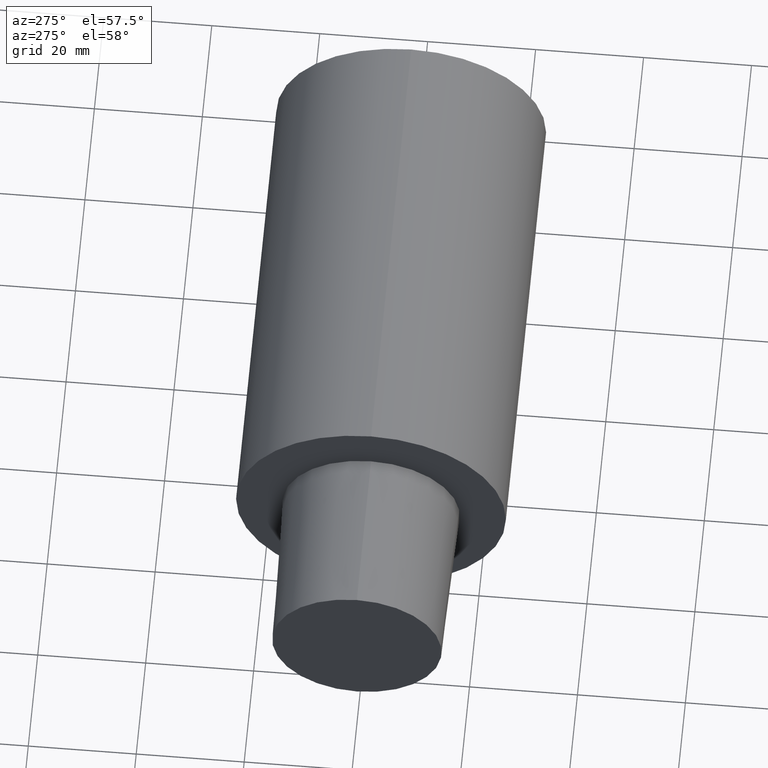
[diagram: clean part render]
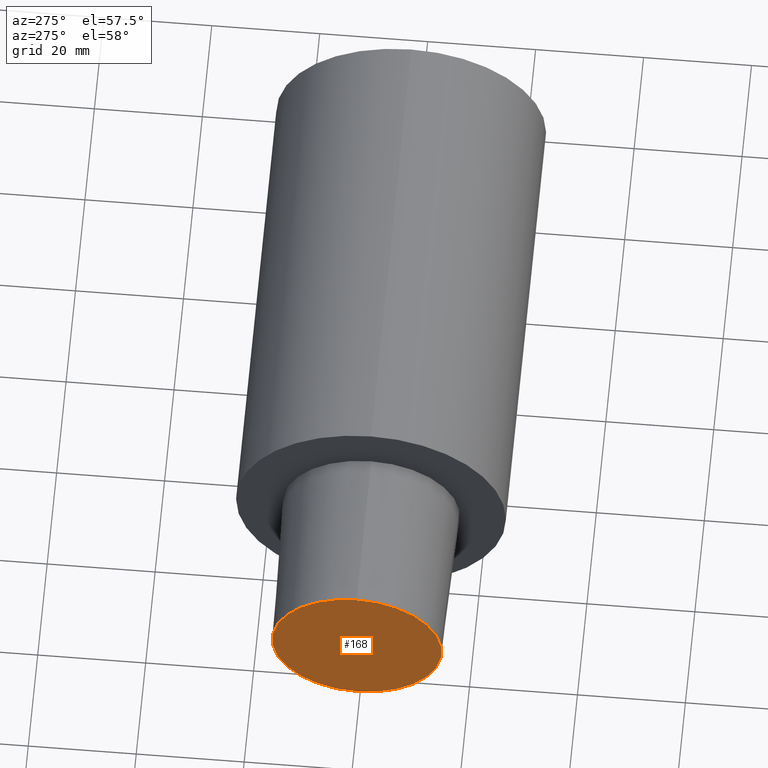
[diagram: same view with one face highlighted and labeled with its STEP entity id]
A machine part, auxiliary view. The second image highlights one B-rep face of the part: STEP entity #168.
In plain terms, the highlighted planar face has unit normal (1, 0, 0).
Its self-contained STEP definition (entity closure, byte-faithful):
#9 = VERTEX_POINT ( 'NONE', #149 ) ;
#12 = CARTESIAN_POINT ( 'NONE',  ( -29.99999996940000102, 0.000000000000000000, -15.70494056296217700 ) ) ;
#18 = DIRECTION ( 'NONE',  ( 0.000000000000000000, 0.000000000000000000, 1.000000000000000000 ) ) ;
#29 = VERTEX_POINT ( 'NONE', #12 ) ;
#35 = PLANE ( 'NONE',  #242 ) ;
#37 = DIRECTION ( 'NONE',  ( 1.000000000000000000, 0.000000000000000000, 0.000000000000000000 ) ) ;
#41 = CARTESIAN_POINT ( 'NONE',  ( -29.99999996940000102, 15.70494056296217700, 0.000000000000000000 ) ) ;
#44 = EDGE_CURVE ( 'NONE', #29, #9, #156, .T. ) ;
#65 = CIRCLE ( 'NONE', #164, 15.70494056296217700 ) ;
#98 = DIRECTION ( 'NONE',  ( -1.000000000000000000, 0.000000000000000000, 0.000000000000000000 ) ) ;
#111 = ORIENTED_EDGE ( 'NONE', *, *, #176, .T. ) ;
#128 = DIRECTION ( 'NONE',  ( 0.000000000000000000, 0.000000000000000000, 1.000000000000000000 ) ) ;
#131 = ORIENTED_EDGE ( 'NONE', *, *, #44, .T. ) ;
#135 = FACE_OUTER_BOUND ( 'NONE', #169, .T. ) ;
#149 = CARTESIAN_POINT ( 'NONE',  ( -29.99999996940000102, 1.969228816626358703E-15, 15.70494056296217700 ) ) ;
#156 = CIRCLE ( 'NONE', #174, 15.70494056296217700 ) ;
#164 = AXIS2_PLACEMENT_3D ( 'NONE', #249, #98, #18 ) ;
#168 = ADVANCED_FACE ( 'NONE', ( #135 ), #35, .F. ) ;
#169 = EDGE_LOOP ( 'NONE', ( #131, #111 ) ) ;
#174 = AXIS2_PLACEMENT_3D ( 'NONE', #248, #204, #128 ) ;
#176 = EDGE_CURVE ( 'NONE', #9, #29, #65, .T. ) ;
#193 = DIRECTION ( 'NONE',  ( 0.000000000000000000, 1.000000000000000000, 0.000000000000000000 ) ) ;
#204 = DIRECTION ( 'NONE',  ( -1.000000000000000000, 0.000000000000000000, 0.000000000000000000 ) ) ;
#242 = AXIS2_PLACEMENT_3D ( 'NONE', #41, #37, #193 ) ;
#248 = CARTESIAN_POINT ( 'NONE',  ( -29.99999996940000102, 0.000000000000000000, 0.000000000000000000 ) ) ;
#249 = CARTESIAN_POINT ( 'NONE',  ( -29.99999996940000102, 0.000000000000000000, 0.000000000000000000 ) ) ;